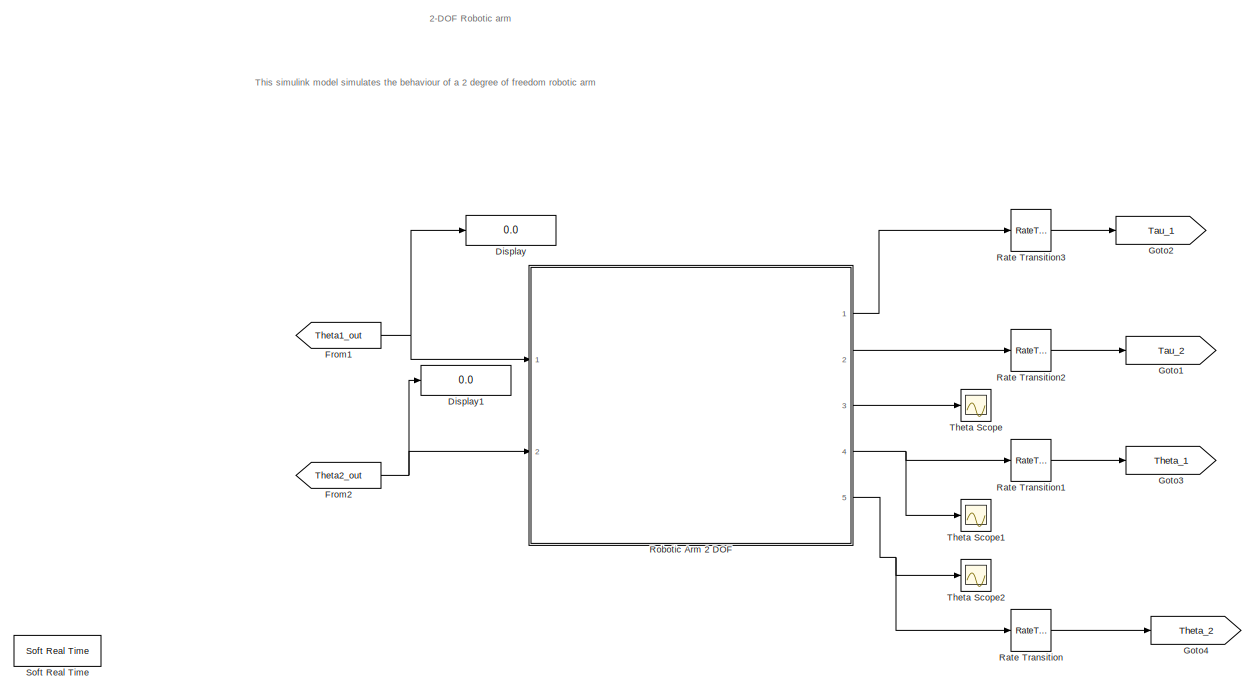
[diagram: root canvas - part 1/2, left side, full height]
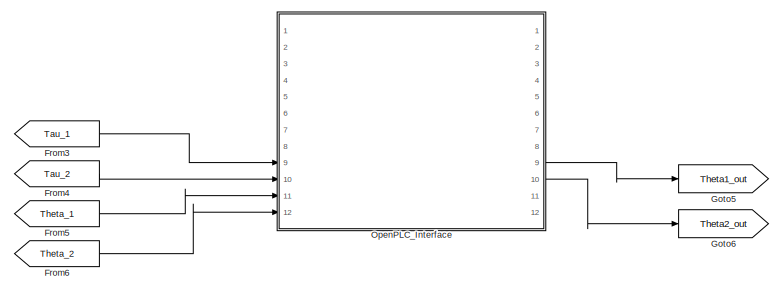
[diagram: root canvas - part 2/2, middle right region]
MODEL slx_260d28875c23
KIND model
CONFIG AbsTol = auto
CONFIG EnableMultiTasking = off
CONFIG FixedStep = auto
CONFIG MaxStep = auto
CONFIG MinStep = auto
CONFIG RelTol = 1e-3
CONFIG SampleTimeConstraint = Unconstrained
CONFIG Solver = VariableStepAuto
CONFIG SolverName = VariableStepAuto
CONFIG StartTime = 0.0
CONFIG StopTime = inf
WORKSPACE source: mxarray member
WORKSPACE PLC_IP_Address = 'localhost'
BLOCK [Display] Display
  Decimation = 1
  Ports = [1]
BLOCK [Display] Display1
  Decimation = 1
  Ports = [1]
BLOCK [From] From1
  GotoTag = Theta1_out
BLOCK [From] From2
  GotoTag = Theta2_out
BLOCK [From] From3
  GotoTag = Tau_1
BLOCK [From] From4
  GotoTag = Tau_2
BLOCK [From] From5
  GotoTag = Theta_1
BLOCK [From] From6
  GotoTag = Theta_2
BLOCK [Goto] Goto1
  GotoTag = Tau_2
BLOCK [Goto] Goto2
  GotoTag = Tau_1
BLOCK [Goto] Goto3
  GotoTag = Theta_1
BLOCK [Goto] Goto4
  GotoTag = Theta_2
BLOCK [Goto] Goto5
  GotoTag = Theta1_out
BLOCK [Goto] Goto6
  GotoTag = Theta2_out
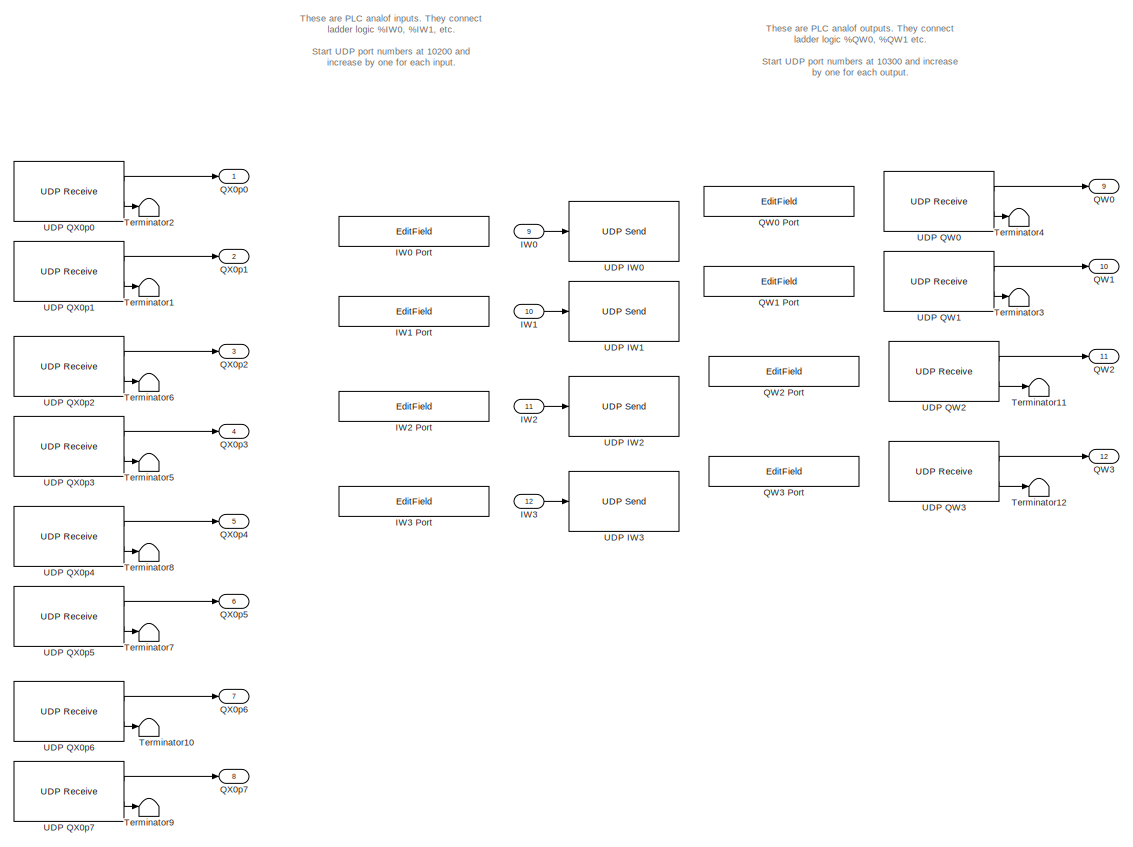
[diagram: OpenPLC_Interface - part 1/2, right side, full height]
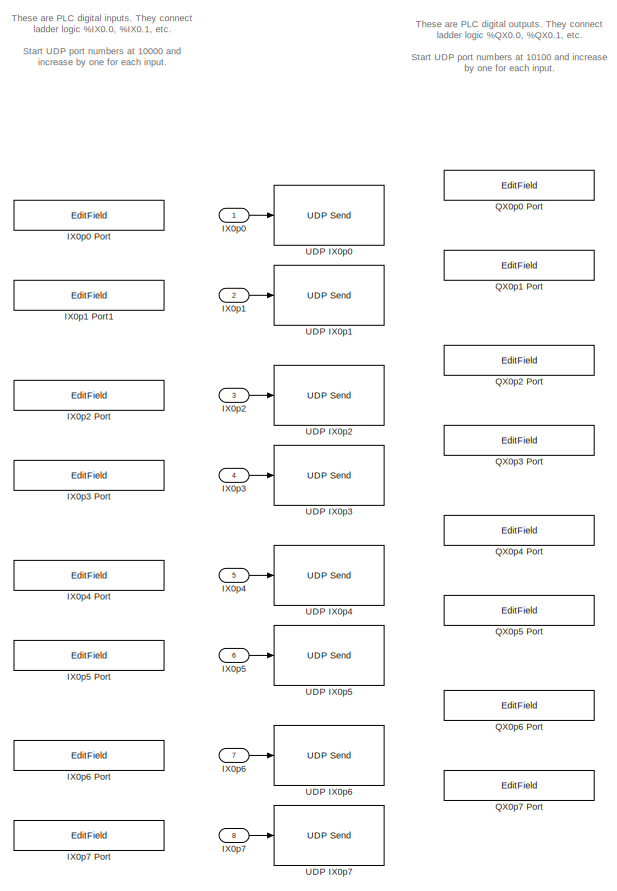
[diagram: OpenPLC_Interface - part 2/2, left side, full height]
BLOCK [SubSystem] OpenPLC_Interface
  Ports = [12, 12]
  RequestExecContextInheritance = off
BLOCK [Inport] OpenPLC_Interface/IW0
  Port = 9
BLOCK [EditField] OpenPLC_Interface/IW0 Port
  Alignment = Center
  LabelPosition = Hide
  ShowInitialText = on
BLOCK [Inport] OpenPLC_Interface/IW1
  Port = 10
BLOCK [EditField] OpenPLC_Interface/IW1 Port
  Alignment = Center
  LabelPosition = Hide
  ShowInitialText = on
BLOCK [Inport] OpenPLC_Interface/IW2
  Port = 11
BLOCK [EditField] OpenPLC_Interface/IW2 Port
  Alignment = Center
  LabelPosition = Hide
  ShowInitialText = on
BLOCK [Inport] OpenPLC_Interface/IW3
  Port = 12
BLOCK [EditField] OpenPLC_Interface/IW3 Port
  Alignment = Center
  LabelPosition = Hide
  ShowInitialText = on
BLOCK [Inport] OpenPLC_Interface/IX0p0 
BLOCK [EditField] OpenPLC_Interface/IX0p0 Port
  Alignment = Center
  LabelPosition = Hide
  ShowInitialText = on
BLOCK [Inport] OpenPLC_Interface/IX0p1
  Port = 2
BLOCK [EditField] OpenPLC_Interface/IX0p1 Port1
  Alignment = Center
  LabelPosition = Hide
  ShowInitialText = on
BLOCK [Inport] OpenPLC_Interface/IX0p2
  Port = 3
BLOCK [EditField] OpenPLC_Interface/IX0p2 Port
  Alignment = Center
  LabelPosition = Hide
  ShowInitialText = on
BLOCK [Inport] OpenPLC_Interface/IX0p3
  Port = 4
BLOCK [EditField] OpenPLC_Interface/IX0p3 Port
  Alignment = Center
  LabelPosition = Hide
  ShowInitialText = on
BLOCK [Inport] OpenPLC_Interface/IX0p4
  Port = 5
BLOCK [EditField] OpenPLC_Interface/IX0p4 Port
  Alignment = Center
  LabelPosition = Hide
  ShowInitialText = on
BLOCK [Inport] OpenPLC_Interface/IX0p5
  Port = 6
BLOCK [EditField] OpenPLC_Interface/IX0p5 Port
  Alignment = Center
  LabelPosition = Hide
  ShowInitialText = on
BLOCK [Inport] OpenPLC_Interface/IX0p6
  Port = 7
BLOCK [EditField] OpenPLC_Interface/IX0p6 Port
  Alignment = Center
  LabelPosition = Hide
  ShowInitialText = on
BLOCK [Inport] OpenPLC_Interface/IX0p7
  Port = 8
BLOCK [EditField] OpenPLC_Interface/IX0p7 Port
  Alignment = Center
  LabelPosition = Hide
  ShowInitialText = on
BLOCK [Outport] OpenPLC_Interface/QW0
  Port = 9
BLOCK [EditField] OpenPLC_Interface/QW0 Port
  Alignment = Center
  LabelPosition = Hide
  ShowInitialText = on
BLOCK [Outport] OpenPLC_Interface/QW1
  Port = 10
BLOCK [EditField] OpenPLC_Interface/QW1 Port
  Alignment = Center
  LabelPosition = Hide
  ShowInitialText = on
BLOCK [Outport] OpenPLC_Interface/QW2
  Port = 11
BLOCK [EditField] OpenPLC_Interface/QW2 Port
  Alignment = Center
  LabelPosition = Hide
  ShowInitialText = on
BLOCK [Outport] OpenPLC_Interface/QW3
  Port = 12
BLOCK [EditField] OpenPLC_Interface/QW3 Port
  Alignment = Center
  LabelPosition = Hide
  ShowInitialText = on
BLOCK [Outport] OpenPLC_Interface/QX0p0
BLOCK [EditField] OpenPLC_Interface/QX0p0 Port
  Alignment = Center
  LabelPosition = Hide
  ShowInitialText = on
BLOCK [Outport] OpenPLC_Interface/QX0p1
  Port = 2
BLOCK [EditField] OpenPLC_Interface/QX0p1 Port
  Alignment = Center
  LabelPosition = Hide
  ShowInitialText = on
BLOCK [Outport] OpenPLC_Interface/QX0p2
  Port = 3
BLOCK [EditField] OpenPLC_Interface/QX0p2 Port
  Alignment = Center
  LabelPosition = Hide
  ShowInitialText = on
BLOCK [Outport] OpenPLC_Interface/QX0p3
  Port = 4
BLOCK [EditField] OpenPLC_Interface/QX0p3 Port
  Alignment = Center
  LabelPosition = Hide
  ShowInitialText = on
BLOCK [Outport] OpenPLC_Interface/QX0p4
  Port = 5
BLOCK [EditField] OpenPLC_Interface/QX0p4 Port
  Alignment = Center
  LabelPosition = Hide
  ShowInitialText = on
BLOCK [Outport] OpenPLC_Interface/QX0p5
  Port = 6
BLOCK [EditField] OpenPLC_Interface/QX0p5 Port
  Alignment = Center
  LabelPosition = Hide
  ShowInitialText = on
BLOCK [Outport] OpenPLC_Interface/QX0p6
  Port = 7
BLOCK [EditField] OpenPLC_Interface/QX0p6 Port
  Alignment = Center
  LabelPosition = Hide
  ShowInitialText = on
BLOCK [Outport] OpenPLC_Interface/QX0p7
  Port = 8
BLOCK [EditField] OpenPLC_Interface/QX0p7 Port
  Alignment = Center
  LabelPosition = Hide
  ShowInitialText = on
BLOCK [Terminator] OpenPLC_Interface/Terminator1
BLOCK [Terminator] OpenPLC_Interface/Terminator10
BLOCK [Terminator] OpenPLC_Interface/Terminator11
BLOCK [Terminator] OpenPLC_Interface/Terminator12
BLOCK [Terminator] OpenPLC_Interface/Terminator2
BLOCK [Terminator] OpenPLC_Interface/Terminator3
BLOCK [Terminator] OpenPLC_Interface/Terminator4
BLOCK [Terminator] OpenPLC_Interface/Terminator5
BLOCK [Terminator] OpenPLC_Interface/Terminator6
BLOCK [Terminator] OpenPLC_Interface/Terminator7
BLOCK [Terminator] OpenPLC_Interface/Terminator8
BLOCK [Terminator] OpenPLC_Interface/Terminator9
BLOCK [Reference] OpenPLC_Interface/UDP IW0  REF=dspnetwork/UDP Send
  Ports = [1]
  SourceBlock = dspnetwork/UDP Send
  SourceProductBaseCode = SL
  SourceType = UDP Send
BLOCK [Reference] OpenPLC_Interface/UDP IW1  REF=dspnetwork/UDP Send
  Ports = [1]
  SourceBlock = dspnetwork/UDP Send
  SourceProductBaseCode = SL
  SourceType = UDP Send
BLOCK [Reference] OpenPLC_Interface/UDP IW2  REF=dspnetwork/UDP Send
  Ports = [1]
  SourceBlock = dspnetwork/UDP Send
  SourceProductBaseCode = SL
  SourceType = UDP Send
BLOCK [Reference] OpenPLC_Interface/UDP IW3  REF=dspnetwork/UDP Send
  Ports = [1]
  SourceBlock = dspnetwork/UDP Send
  SourceProductBaseCode = SL
  SourceType = UDP Send
BLOCK [Reference] OpenPLC_Interface/UDP IX0p0  REF=dspnetwork/UDP Send
  Ports = [1]
  SourceBlock = dspnetwork/UDP Send
  SourceProductBaseCode = SL
  SourceType = UDP Send
BLOCK [Reference] OpenPLC_Interface/UDP IX0p1  REF=dspnetwork/UDP Send
  Ports = [1]
  SourceBlock = dspnetwork/UDP Send
  SourceProductBaseCode = SL
  SourceType = UDP Send
BLOCK [Reference] OpenPLC_Interface/UDP IX0p2  REF=dspnetwork/UDP Send
  Ports = [1]
  SourceBlock = dspnetwork/UDP Send
  SourceProductBaseCode = SL
  SourceType = UDP Send
BLOCK [Reference] OpenPLC_Interface/UDP IX0p3  REF=dspnetwork/UDP Send
  Ports = [1]
  SourceBlock = dspnetwork/UDP Send
  SourceProductBaseCode = SL
  SourceType = UDP Send
BLOCK [Reference] OpenPLC_Interface/UDP IX0p4  REF=dspnetwork/UDP Send
  Ports = [1]
  SourceBlock = dspnetwork/UDP Send
  SourceProductBaseCode = SL
  SourceType = UDP Send
BLOCK [Reference] OpenPLC_Interface/UDP IX0p5  REF=dspnetwork/UDP Send
  Ports = [1]
  SourceBlock = dspnetwork/UDP Send
  SourceProductBaseCode = SL
  SourceType = UDP Send
BLOCK [Reference] OpenPLC_Interface/UDP IX0p6  REF=dspnetwork/UDP Send
  Ports = [1]
  SourceBlock = dspnetwork/UDP Send
  SourceProductBaseCode = SL
  SourceType = UDP Send
BLOCK [Reference] OpenPLC_Interface/UDP IX0p7  REF=dspnetwork/UDP Send
  Ports = [1]
  SourceBlock = dspnetwork/UDP Send
  SourceProductBaseCode = SL
  SourceType = UDP Send
BLOCK [Reference] OpenPLC_Interface/UDP QW0  REF=dspnetwork/UDP Receive
  Ports = [0, 2]
  SourceBlock = dspnetwork/UDP Receive
  SourceProductBaseCode = SL
  SourceType = UDP Receive
BLOCK [Reference] OpenPLC_Interface/UDP QW1  REF=dspnetwork/UDP Receive
  Ports = [0, 2]
  SourceBlock = dspnetwork/UDP Receive
  SourceProductBaseCode = SL
  SourceType = UDP Receive
BLOCK [Reference] OpenPLC_Interface/UDP QW2  REF=dspnetwork/UDP Receive
  Ports = [0, 2]
  SourceBlock = dspnetwork/UDP Receive
  SourceProductBaseCode = SL
  SourceType = UDP Receive
BLOCK [Reference] OpenPLC_Interface/UDP QW3  REF=dspnetwork/UDP Receive
  Ports = [0, 2]
  SourceBlock = dspnetwork/UDP Receive
  SourceProductBaseCode = SL
  SourceType = UDP Receive
BLOCK [Reference] OpenPLC_Interface/UDP QX0p0  REF=dspnetwork/UDP Receive
  Ports = [0, 2]
  SourceBlock = dspnetwork/UDP Receive
  SourceProductBaseCode = SL
  SourceType = UDP Receive
BLOCK [Reference] OpenPLC_Interface/UDP QX0p1  REF=dspnetwork/UDP Receive
  Ports = [0, 2]
  SourceBlock = dspnetwork/UDP Receive
  SourceProductBaseCode = SL
  SourceType = UDP Receive
BLOCK [Reference] OpenPLC_Interface/UDP QX0p2  REF=dspnetwork/UDP Receive
  Ports = [0, 2]
  SourceBlock = dspnetwork/UDP Receive
  SourceProductBaseCode = SL
  SourceType = UDP Receive
BLOCK [Reference] OpenPLC_Interface/UDP QX0p3  REF=dspnetwork/UDP Receive
  Ports = [0, 2]
  SourceBlock = dspnetwork/UDP Receive
  SourceProductBaseCode = SL
  SourceType = UDP Receive
BLOCK [Reference] OpenPLC_Interface/UDP QX0p4  REF=dspnetwork/UDP Receive
  Ports = [0, 2]
  SourceBlock = dspnetwork/UDP Receive
  SourceProductBaseCode = SL
  SourceType = UDP Receive
BLOCK [Reference] OpenPLC_Interface/UDP QX0p5  REF=dspnetwork/UDP Receive
  Ports = [0, 2]
  SourceBlock = dspnetwork/UDP Receive
  SourceProductBaseCode = SL
  SourceType = UDP Receive
BLOCK [Reference] OpenPLC_Interface/UDP QX0p6  REF=dspnetwork/UDP Receive
  Ports = [0, 2]
  SourceBlock = dspnetwork/UDP Receive
  SourceProductBaseCode = SL
  SourceType = UDP Receive
BLOCK [Reference] OpenPLC_Interface/UDP QX0p7  REF=dspnetwork/UDP Receive
  Ports = [0, 2]
  SourceBlock = dspnetwork/UDP Receive
  SourceProductBaseCode = SL
  SourceType = UDP Receive
BLOCK [RateTransition] Rate Transition
BLOCK [RateTransition] Rate Transition1
BLOCK [RateTransition] Rate Transition2
BLOCK [RateTransition] Rate Transition3
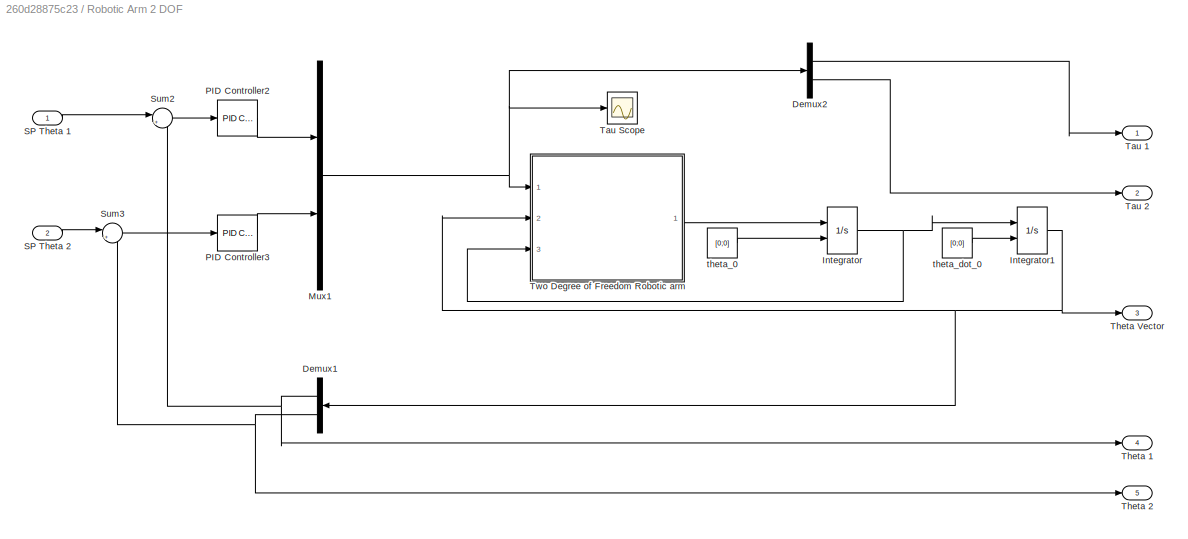
BLOCK [SubSystem] Robotic Arm 2 DOF
  Ports = [2, 5]
  RequestExecContextInheritance = off
BLOCK [Demux] Robotic Arm 2 DOF/Demux1
  Outputs = 2
  Ports = [1, 2]
BLOCK [Demux] Robotic Arm 2 DOF/Demux2
  Outputs = 2
  Ports = [1, 2]
BLOCK [Integrator] Robotic Arm 2 DOF/Integrator
  InitialConditionSource = external
  Ports = [2, 1]
BLOCK [Integrator] Robotic Arm 2 DOF/Integrator1
  InitialConditionSource = external
  Ports = [2, 1]
BLOCK [Mux] Robotic Arm 2 DOF/Mux1
  DisplayOption = bar
  Inputs = 2
  Ports = [2, 1]
BLOCK [Reference] Robotic Arm 2 DOF/PID Controller2  REF=simulink/Continuous/PID Controller
  Ports = [1, 1]
  SourceBlock = simulink/Continuous/PID Controller
  SourceProductBaseCode = SL
  SourceType = PID 1dof
BLOCK [Reference] Robotic Arm 2 DOF/PID Controller3  REF=simulink/Continuous/PID Controller
  Ports = [1, 1]
  SourceBlock = simulink/Continuous/PID Controller
  SourceProductBaseCode = SL
  SourceType = PID 1dof
BLOCK [Inport] Robotic Arm 2 DOF/SP Theta 1
BLOCK [Inport] Robotic Arm 2 DOF/SP Theta 2
  Port = 2
BLOCK [Sum] Robotic Arm 2 DOF/Sum2
  Inputs = |+-
  Ports = [2, 1]
BLOCK [Sum] Robotic Arm 2 DOF/Sum3
  Inputs = |+-
  Ports = [2, 1]
BLOCK [Outport] Robotic Arm 2 DOF/Tau 1
  VectorParamsAs1DForOutWhenUnconnected = off
BLOCK [Outport] Robotic Arm 2 DOF/Tau 2
  Port = 2
  VectorParamsAs1DForOutWhenUnconnected = off
BLOCK [Scope] Robotic Arm 2 DOF/Tau Scope
  Floating = off
  NumInputPorts = 1
  Ports = [1]
  ScopeSpecificationString = Simulink.scopes.TimeScopeBlockCfg('CurrentConfiguration', extmgr.ConfigurationSet(extmgr.Configuration('Core','General UI',true),extmgr.Configuration('Core','Source UI',true),extmgr.Configuration('Sources','WiredSimulink',true,'DataLoggingVariableName','ScopeData1'),extmgr.Configuration('Visuals','Time Domain',true,'SerializedDisplays',{struct('MinYLimReal','7.34076','MaxYLimReal','31.83498','YLab...<+1480ch>
BLOCK [Outport] Robotic Arm 2 DOF/Theta 1
  Port = 4
  VectorParamsAs1DForOutWhenUnconnected = off
BLOCK [Outport] Robotic Arm 2 DOF/Theta 2
  Port = 5
  VectorParamsAs1DForOutWhenUnconnected = off
BLOCK [Outport] Robotic Arm 2 DOF/Theta Vector
  Port = 3
  VectorParamsAs1DForOutWhenUnconnected = off
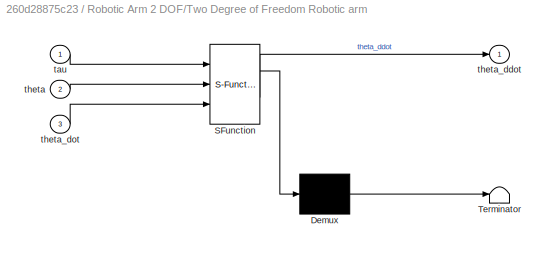
BLOCK [SubSystem] Robotic Arm 2 DOF/Two Degree of Freedom Robotic arm
  ErrorFcn = Stateflow.Translate.translate
  PermitHierarchicalResolution = ExplicitOnly
  Ports = [3, 1]
  RequestExecContextInheritance = off
  SFBlockType = MATLAB Function
  TreatAsAtomicUnit = on
BLOCK [Demux] Robotic Arm 2 DOF/Two Degree of Freedom Robotic arm/ Demux 
  Outputs = 1
  Ports = [1, 1]
BLOCK [S-Function] Robotic Arm 2 DOF/Two Degree of Freedom Robotic arm/ SFunction 
  EnableBusSupport = on
  FunctionName = sf_sfun
  PortCounts = [3 2]
  Ports = [3, 2]
  SFcnIsStateOwnerBlock = off
  SFunctionDeploymentMode = off
  Tag = Stateflow S-Function 3
BLOCK [Terminator] Robotic Arm 2 DOF/Two Degree of Freedom Robotic arm/ Terminator 
BLOCK [Inport] Robotic Arm 2 DOF/Two Degree of Freedom Robotic arm/tau
BLOCK [Inport] Robotic Arm 2 DOF/Two Degree of Freedom Robotic arm/theta
  Port = 2
BLOCK [Outport] Robotic Arm 2 DOF/Two Degree of Freedom Robotic arm/theta_ddot
  VectorParamsAs1DForOutWhenUnconnected = off
BLOCK [Inport] Robotic Arm 2 DOF/Two Degree of Freedom Robotic arm/theta_dot
  Port = 3
BLOCK [Constant] Robotic Arm 2 DOF/theta_0
  Value = [0;0]
BLOCK [Constant] Robotic Arm 2 DOF/theta_dot_0
  Value = [0;0]
BLOCK [Reference] Soft Real Time  REF=utility/Soft Real Time  (lib defined in slx_8818c3a16fdf)
  Ports = []
  SourceBlock = utility/Soft Real Time
  SourceProductName = Soft Real Time Lib
BLOCK [Scope] Theta Scope
  Floating = off
  NumInputPorts = 1
  Ports = [1]
  ScopeSpecificationString = Simulink.scopes.TimeScopeBlockCfg('CurrentConfiguration', extmgr.ConfigurationSet(extmgr.Configuration('Core','General UI',true),extmgr.Configuration('Core','Source UI',true),extmgr.Configuration('Sources','WiredSimulink',true),extmgr.Configuration('Visuals','Time Domain',true,'SerializedDisplays',{struct('MinYLimReal','-13.22034','MaxYLimReal','83.88999','YLabelReal','','MinYLimMag','0.00000','Ma...<+1413ch>
BLOCK [Scope] Theta Scope1
  Floating = off
  NumInputPorts = 1
  Ports = [1]
  ScopeSpecificationString = Simulink.scopes.TimeScopeBlockCfg('CurrentConfiguration', extmgr.ConfigurationSet(extmgr.Configuration('Core','General UI',true),extmgr.Configuration('Core','Source UI',true),extmgr.Configuration('Sources','WiredSimulink',true,'DataLoggingVariableName','ScopeData1'),extmgr.Configuration('Visuals','Time Domain',true,'SerializedDisplays',{struct('MinYLimReal','-11.74233','MaxYLimReal','83.25564','YL...<+1439ch>
BLOCK [Scope] Theta Scope2
  Floating = off
  NumInputPorts = 1
  Ports = [1]
  ScopeSpecificationString = Simulink.scopes.TimeScopeBlockCfg('CurrentConfiguration', extmgr.ConfigurationSet(extmgr.Configuration('Core','General UI',true),extmgr.Configuration('Core','Source UI',true),extmgr.Configuration('Sources','WiredSimulink',true,'DataLoggingVariableName','ScopeData2'),extmgr.Configuration('Visuals','Time Domain',true,'SerializedDisplays',{struct('MinYLimReal','-8.99798','MaxYLimReal','80.98178','YLa...<+1450ch>
ANNOTATION (root): This simulink model simulates the behaviour of a 2 degree of freedom robotic arm
ANNOTATION (root): 2-DOF Robotic arm
ANNOTATION OpenPLC_Interface: These are PLC analof inputs. They connect ladder logic %IW0, %IW1, etc. Start UDP port numbers at 10200 and increase by one for each input. Update model variable PLC_IP_Address to set PLC ip address.
ANNOTATION OpenPLC_Interface: These are PLC analof outputs. They connect ladder logic %QW0, %QW1 etc. Start UDP port numbers at 10300 and increase by one for each output.
ANNOTATION OpenPLC_Interface: These are PLC digital inputs. They connect ladder logic %IX0.0, %IX0.1, etc. Start UDP port numbers at 10000 and increase by one for each input. Update model variable PLC_IP_Address to set PLC ip address.
ANNOTATION OpenPLC_Interface: These are PLC digital outputs. They connect ladder logic %QX0.0, %QX0.1, etc. Start UDP port numbers at 10100 and increase by one for each input.
NET From1:1 -> Display:1, Robotic Arm 2 DOF:1
NET From2:1 -> Display1:1, Robotic Arm 2 DOF:2
LINE From3:1 -> OpenPLC_Interface:9
LINE From4:1 -> OpenPLC_Interface:10
LINE From5:1 -> OpenPLC_Interface:11
LINE From6:1 -> OpenPLC_Interface:12
LINE OpenPLC_Interface/IW0:1 -> OpenPLC_Interface/UDP IW0:1
LINE OpenPLC_Interface/IW1:1 -> OpenPLC_Interface/UDP IW1:1
LINE OpenPLC_Interface/IW2:1 -> OpenPLC_Interface/UDP IW2:1
LINE OpenPLC_Interface/IW3:1 -> OpenPLC_Interface/UDP IW3:1
LINE OpenPLC_Interface/IX0p0 :1 -> OpenPLC_Interface/UDP IX0p0:1
LINE OpenPLC_Interface/IX0p1:1 -> OpenPLC_Interface/UDP IX0p1:1
LINE OpenPLC_Interface/IX0p2:1 -> OpenPLC_Interface/UDP IX0p2:1
LINE OpenPLC_Interface/IX0p3:1 -> OpenPLC_Interface/UDP IX0p3:1
LINE OpenPLC_Interface/IX0p4:1 -> OpenPLC_Interface/UDP IX0p4:1
LINE OpenPLC_Interface/IX0p5:1 -> OpenPLC_Interface/UDP IX0p5:1
LINE OpenPLC_Interface/IX0p6:1 -> OpenPLC_Interface/UDP IX0p6:1
LINE OpenPLC_Interface/IX0p7:1 -> OpenPLC_Interface/UDP IX0p7:1
LINE OpenPLC_Interface/UDP QW0:1 -> OpenPLC_Interface/QW0:1
LINE OpenPLC_Interface/UDP QW0:2 -> OpenPLC_Interface/Terminator4:1
LINE OpenPLC_Interface/UDP QW1:1 -> OpenPLC_Interface/QW1:1
LINE OpenPLC_Interface/UDP QW1:2 -> OpenPLC_Interface/Terminator3:1
LINE OpenPLC_Interface/UDP QW2:1 -> OpenPLC_Interface/QW2:1
LINE OpenPLC_Interface/UDP QW2:2 -> OpenPLC_Interface/Terminator11:1
LINE OpenPLC_Interface/UDP QW3:1 -> OpenPLC_Interface/QW3:1
LINE OpenPLC_Interface/UDP QW3:2 -> OpenPLC_Interface/Terminator12:1
LINE OpenPLC_Interface/UDP QX0p0:1 -> OpenPLC_Interface/QX0p0:1
LINE OpenPLC_Interface/UDP QX0p0:2 -> OpenPLC_Interface/Terminator2:1
LINE OpenPLC_Interface/UDP QX0p1:1 -> OpenPLC_Interface/QX0p1:1
LINE OpenPLC_Interface/UDP QX0p1:2 -> OpenPLC_Interface/Terminator1:1
LINE OpenPLC_Interface/UDP QX0p2:1 -> OpenPLC_Interface/QX0p2:1
LINE OpenPLC_Interface/UDP QX0p2:2 -> OpenPLC_Interface/Terminator6:1
LINE OpenPLC_Interface/UDP QX0p3:1 -> OpenPLC_Interface/QX0p3:1
LINE OpenPLC_Interface/UDP QX0p3:2 -> OpenPLC_Interface/Terminator5:1
LINE OpenPLC_Interface/UDP QX0p4:1 -> OpenPLC_Interface/QX0p4:1
LINE OpenPLC_Interface/UDP QX0p4:2 -> OpenPLC_Interface/Terminator8:1
LINE OpenPLC_Interface/UDP QX0p5:1 -> OpenPLC_Interface/QX0p5:1
LINE OpenPLC_Interface/UDP QX0p5:2 -> OpenPLC_Interface/Terminator7:1
LINE OpenPLC_Interface/UDP QX0p6:1 -> OpenPLC_Interface/QX0p6:1
LINE OpenPLC_Interface/UDP QX0p6:2 -> OpenPLC_Interface/Terminator10:1
LINE OpenPLC_Interface/UDP QX0p7:1 -> OpenPLC_Interface/QX0p7:1
LINE OpenPLC_Interface/UDP QX0p7:2 -> OpenPLC_Interface/Terminator9:1
LINE OpenPLC_Interface:10 -> Goto6:1
LINE OpenPLC_Interface:9 -> Goto5:1
LINE Rate Transition1:1 -> Goto3:1
LINE Rate Transition2:1 -> Goto1:1
LINE Rate Transition3:1 -> Goto2:1
LINE Rate Transition:1 -> Goto4:1
NET Robotic Arm 2 DOF/Demux1:1 -> Robotic Arm 2 DOF/Sum2:2, Robotic Arm 2 DOF/Theta 1:1
NET Robotic Arm 2 DOF/Demux1:2 -> Robotic Arm 2 DOF/Sum3:2, Robotic Arm 2 DOF/Theta 2:1
LINE Robotic Arm 2 DOF/Demux2:1 -> Robotic Arm 2 DOF/Tau 1:1
LINE Robotic Arm 2 DOF/Demux2:2 -> Robotic Arm 2 DOF/Tau 2:1
NET Robotic Arm 2 DOF/Integrator1:1 -> Robotic Arm 2 DOF/Demux1:1, Robotic Arm 2 DOF/Theta Vector:1, Robotic Arm 2 DOF/Two Degree of Freedom Robotic arm:2
NET Robotic Arm 2 DOF/Integrator:1 -> Robotic Arm 2 DOF/Integrator1:1, Robotic Arm 2 DOF/Two Degree of Freedom Robotic arm:3
NET Robotic Arm 2 DOF/Mux1:1 -> Robotic Arm 2 DOF/Demux2:1, Robotic Arm 2 DOF/Tau Scope:1, Robotic Arm 2 DOF/Two Degree of Freedom Robotic arm:1
LINE Robotic Arm 2 DOF/PID Controller2:1 -> Robotic Arm 2 DOF/Mux1:1
LINE Robotic Arm 2 DOF/PID Controller3:1 -> Robotic Arm 2 DOF/Mux1:2
LINE Robotic Arm 2 DOF/SP Theta 1:1 -> Robotic Arm 2 DOF/Sum2:1
LINE Robotic Arm 2 DOF/SP Theta 2:1 -> Robotic Arm 2 DOF/Sum3:1
LINE Robotic Arm 2 DOF/Sum2:1 -> Robotic Arm 2 DOF/PID Controller2:1
LINE Robotic Arm 2 DOF/Sum3:1 -> Robotic Arm 2 DOF/PID Controller3:1
LINE Robotic Arm 2 DOF/Two Degree of Freedom Robotic arm:1 -> Robotic Arm 2 DOF/Integrator:1
LINE Robotic Arm 2 DOF/theta_0:1 -> Robotic Arm 2 DOF/Integrator:2
LINE Robotic Arm 2 DOF/theta_dot_0:1 -> Robotic Arm 2 DOF/Integrator1:2
LINE Robotic Arm 2 DOF:1 -> Rate Transition3:1
LINE Robotic Arm 2 DOF:2 -> Rate Transition2:1
LINE Robotic Arm 2 DOF:3 -> Theta Scope:1
NET Robotic Arm 2 DOF:4 -> Rate Transition1:1, Theta Scope1:1
NET Robotic Arm 2 DOF:5 -> Rate Transition:1, Theta Scope2:1
note: NET lines group one-source signal fan-out (src -> all destinations, sorted); 1:1 wires keep LINE
CHART Robotic Arm 2 DOF/Two Degree of Freedom Robotic arm states=1 transitions=1
  STATE_LABEL 'eML_blk_kernel()'
  STATE_LABEL 'SCRIPT:\n%This function takes tau as input and gives the subsequent theta and theta\n%dot as the output. This function simulates the behaviour of a 2-DOF\n%robotic arm\nfunction theta_ddot=fcn(tau,theta,theta_dot)\n\n% initialize vectors at the beginning of the function to define their dimensions\ntheta_ddot = [0;0]; \n\n% Specification of the robot. The length and mass of robotic arms. \nLength1 = 1.0;\nLen...<+1094ch>'
CHART  states=0 transitions=0
